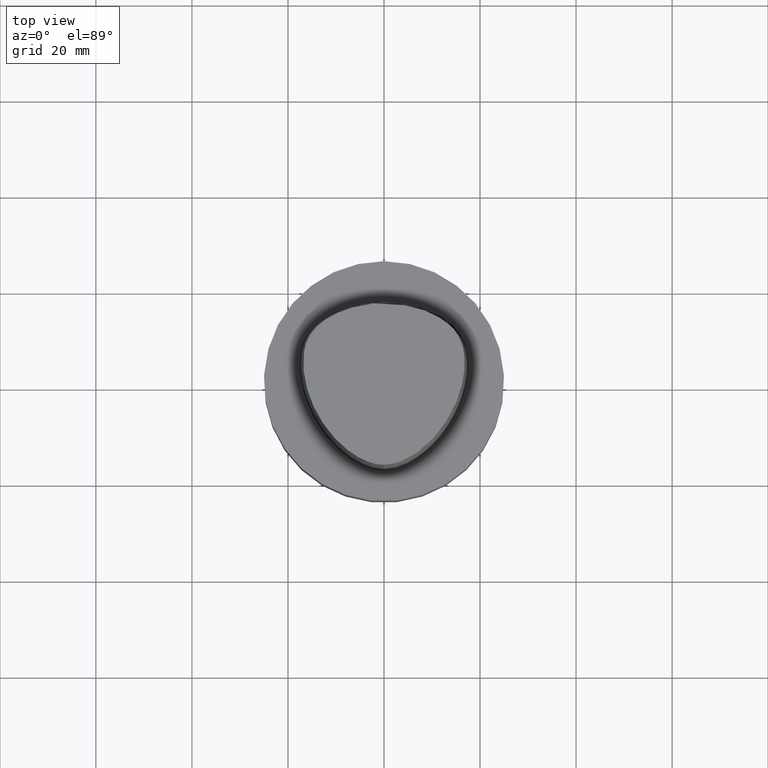
[diagram: clean part render]
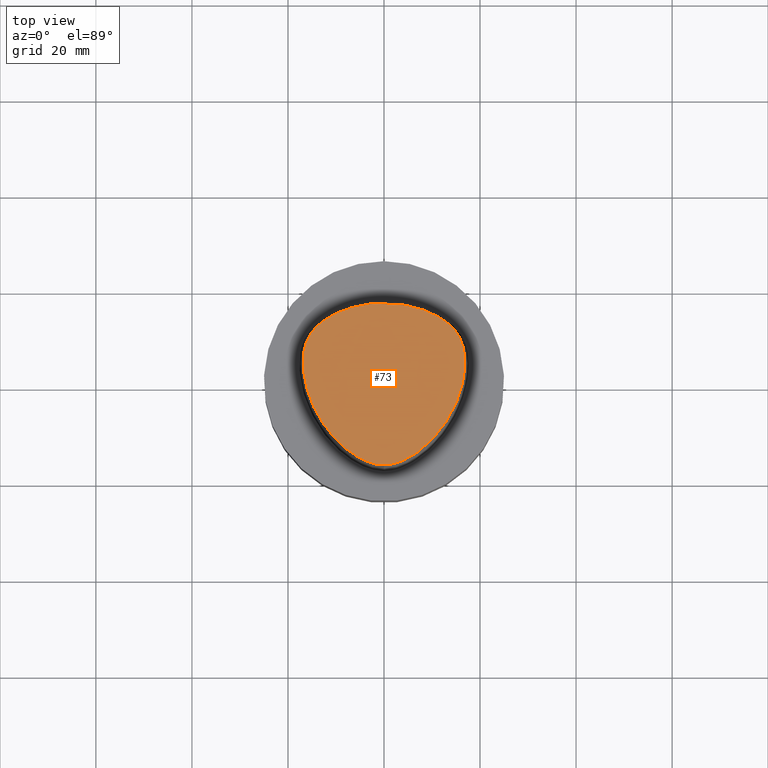
[diagram: same view with one face highlighted and labeled with its STEP entity id]
A machine part, top view. The second image highlights one B-rep face of the part: STEP entity #73.
In plain terms, the highlighted planar face has unit normal (-0, 0, 1).
Its self-contained STEP definition (entity closure, byte-faithful):
#73=ADVANCED_FACE('Unnamed[1]',(#180),#181,.T.);
#133=EDGE_CURVE('Unnamed[1]',#258,#258,#269,.T.);
#180=FACE_OUTER_BOUND('',#319,.T.);
#181=PLANE('',#320);
#258=VERTEX_POINT('',#511);
#269=B_SPLINE_CURVE_WITH_KNOTS('',3,(#528,#529,#530,#531,#532,#533,#534,#535,#536,#537,#538,#539,#540,#541,#542,#543,#544,#545,#546,#547,#548,#549,#550,#551,#552,#553,#554,#555,#556,#557,#558,#559,#560,#561,#562,#563,#564,#565,#566,#567,#568,#569,#570,#571,#572,#573,#574,#575,#576),.UNSPECIFIED.,.T.,.F.,(4,1,1,1,1,1,1,1,1,1,1,1,1,1,1,1,1,1,1,1,1,1,1,1,1,1,1,1,1,1,1,1,1,1,1,1,1,1,1,1,1,1,1,1,1,1,4),(0.0,0.023135829350767,0.046149078767971,0.068686553945372,0.09058948843834,0.11187442371895,0.132659030725504,0.153111474090064,0.173428097006866,0.193812703683075,0.214465113334926,0.235566638619369,0.257256396596226,0.279590584305387,0.302476275092963,0.325611612149197,0.348735785989546,0.371826971229282,0.39455923139207,0.416669726533691,0.438154204641074,0.459103554741756,0.479643077908811,0.50010643098029,0.520399705216369,0.54092682403315,0.561890845659905,0.583370991138857,0.605476574502583,0.62820876493626,0.65131550684809,0.674427687768046,0.697531018602722,0.720425222070344,0.742763449220249,0.764449723968905,0.785551037463572,0.806204240231889,0.826588983931571,0.846905402970388,0.867357715119018,0.88814171778586,0.909429413217286,0.931324749020081,0.953885589892717,0.976862732393428,1.0),.UNSPECIFIED.);
#319=EDGE_LOOP('',(#1003));
#320=AXIS2_PLACEMENT_3D('',#1004,#1005,#1006);
#511=CARTESIAN_POINT('',(-2.78602932413959E-015,-17.9423775546504,30.0));
#528=CARTESIAN_POINT('',(-2.78602932413959E-015,-17.9423775546504,30.0));
#529=CARTESIAN_POINT('',(-0.814120797978075,-17.9643878187761,30.0));
#530=CARTESIAN_POINT('',(-2.44279318309434,-17.6670056599032,30.0));
#531=CARTESIAN_POINT('',(-4.69065600148019,-16.7591312239375,30.0));
#532=CARTESIAN_POINT('',(-6.73157621234646,-15.527654017863,30.0));
#533=CARTESIAN_POINT('',(-8.55606567082544,-14.0980586872352,30.0));
#534=CARTESIAN_POINT('',(-10.1771160862307,-12.5294920614813,30.0));
#535=CARTESIAN_POINT('',(-11.6098311271326,-10.8549672983455,30.0));
#536=CARTESIAN_POINT('',(-12.8723444784573,-9.09084166630711,30.0));
#537=CARTESIAN_POINT('',(-13.9762474627415,-7.23982146073079,30.0));
#538=CARTESIAN_POINT('',(-14.9241349859217,-5.29636298798721,30.0));
#539=CARTESIAN_POINT('',(-15.7132736469777,-3.2533357158659,30.0));
#540=CARTESIAN_POINT('',(-16.3266313043064,-1.10238675181427,30.0));
#541=CARTESIAN_POINT('',(-16.7327867713303,1.15808256309649,30.0));
#542=CARTESIAN_POINT('',(-16.8801613787167,3.51564121263174,30.0));
#543=CARTESIAN_POINT('',(-16.6855836228514,5.92229128835704,30.0));
#544=CARTESIAN_POINT('',(-16.0281509658443,8.29517868854449,30.0));
#545=CARTESIAN_POINT('',(-14.6640408300166,10.3669104243273,30.0));
#546=CARTESIAN_POINT('',(-12.8332969997264,11.9882678763451,30.0));
#547=CARTESIAN_POINT('',(-10.7856401290832,13.2404482750702,30.0));
#548=CARTESIAN_POINT('',(-8.65298741417579,14.19764142693,30.0));
#549=CARTESIAN_POINT('',(-6.48957622042645,14.9235651413533,30.0));
#550=CARTESIAN_POINT('',(-4.30784954842127,15.2925809723717,30.0));
#551=CARTESIAN_POINT('',(-2.16867899857279,15.8525920055235,30.0));
#552=CARTESIAN_POINT('',(-0.0054980597270801,15.506533819507,30.0));
#553=CARTESIAN_POINT('',(2.15423811148254,15.6758925558313,30.0));
#554=CARTESIAN_POINT('',(4.31367631773855,15.3366483013887,30.0));
#555=CARTESIAN_POINT('',(6.49156913463884,14.9221231752341,30.0));
#556=CARTESIAN_POINT('',(8.65317555043793,14.199841033848,30.0));
#557=CARTESIAN_POINT('',(10.7855591317115,13.2388028674922,30.0));
#558=CARTESIAN_POINT('',(12.8289446834375,11.9844078416963,30.0));
#559=CARTESIAN_POINT('',(14.6809214389867,10.37934328945,30.0));
#560=CARTESIAN_POINT('',(15.9964040236072,8.28000660116028,30.0));
#561=CARTESIAN_POINT('',(16.6999197177274,5.92601467018833,30.0));
#562=CARTESIAN_POINT('',(16.8785470495877,3.51485696104406,30.0));
#563=CARTESIAN_POINT('',(16.7308989568545,1.15864914401017,30.0));
#564=CARTESIAN_POINT('',(16.3270119409732,-1.10262794482627,30.0));
#565=CARTESIAN_POINT('',(15.7138840293007,-3.25349612648562,30.0));
#566=CARTESIAN_POINT('',(14.9244427410538,-5.29647704660135,30.0));
#567=CARTESIAN_POINT('',(13.9756636589241,-7.23950698099948,30.0));
#568=CARTESIAN_POINT('',(12.8724663956831,-9.09088034657936,30.0));
#569=CARTESIAN_POINT('',(11.6099597844916,-10.8551381410581,30.0));
#570=CARTESIAN_POINT('',(10.1759690661341,-12.5282962499649,30.0));
#571=CARTESIAN_POINT('',(8.55887653552809,-14.1013446755591,30.0));
#572=CARTESIAN_POINT('',(6.72595297076831,-15.5205541881092,30.0));
#573=CARTESIAN_POINT('',(4.69995925068727,-16.7729025475684,30.0));
#574=CARTESIAN_POINT('',(2.43523789305481,-17.660279021922,30.0));
#575=CARTESIAN_POINT('',(0.814171408394767,-17.9203659222405,30.0));
#576=CARTESIAN_POINT('',(-2.83508942413959E-015,-17.9423775546504,30.0));
#1003=ORIENTED_EDGE('',*,*,#133,.F.);
#1004=CARTESIAN_POINT('',(-0.000657534264248203,-1.65575572608802,30.0));
#1005=DIRECTION('',(-0.0,2.95577857036584E-049,1.0));
#1006=DIRECTION('',(1.0,0.0,0.0));